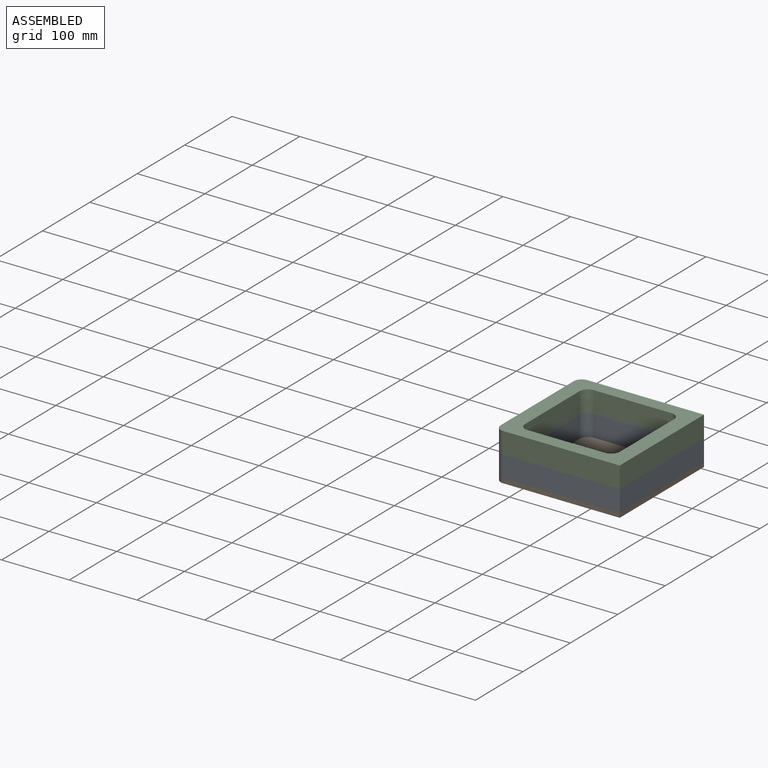
[diagram: assembled view]
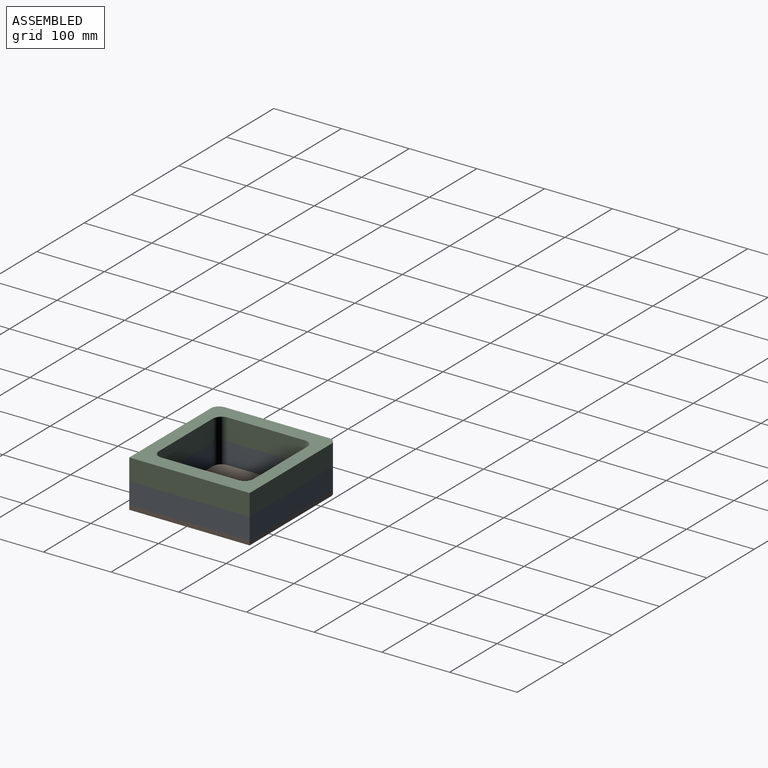
[diagram: assembled view, second angle]
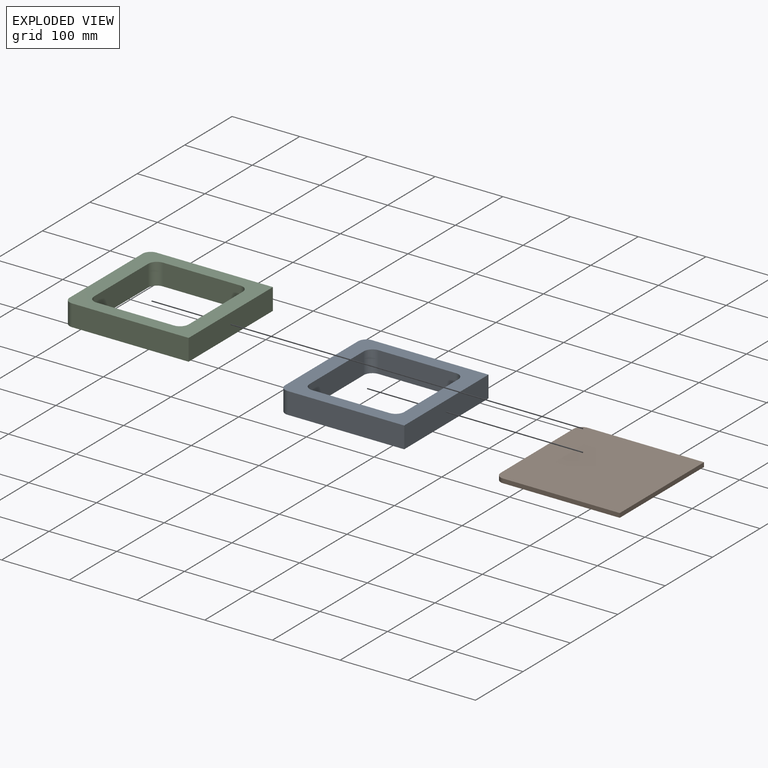
[diagram: exploded view]
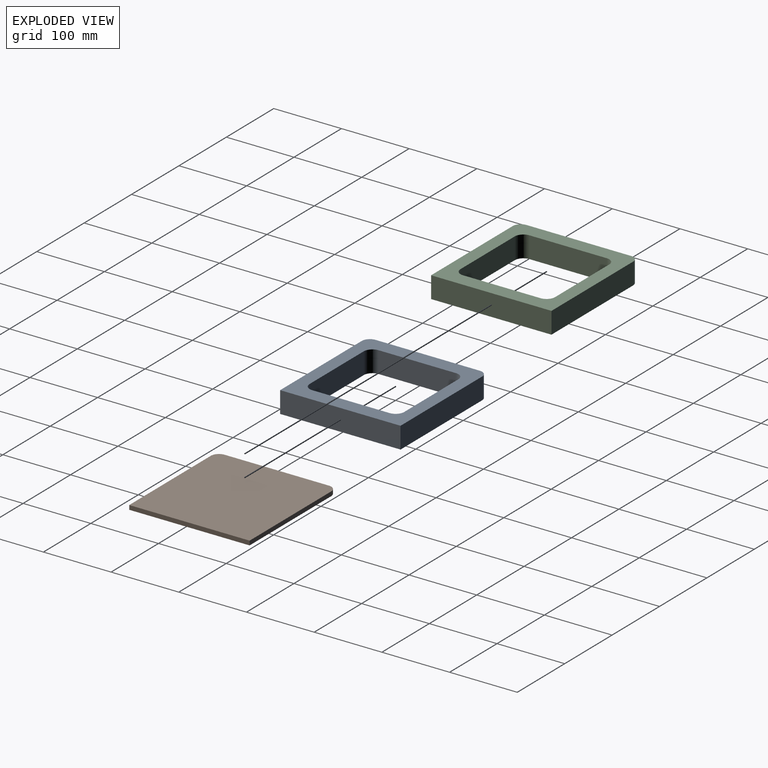
[diagram: exploded view, second angle]
ASSEMBLY  parts=3 mates=6
PART A: 16 faces, bbox 184.2x177.8x31.8 mm
  f0: plane 172.15x31.75mm, normal (0,1,0), area 5465.7mm2, adj f1,f5,f6,f7
  f1: cylinder r=12mm len=31.75mm, axis (0,0,-1), area 598.5mm2, adj f0,f2,f6,f7
  f2: plane 153.8x31.75mm, normal (-1,0,0), area 4883.1mm2, adj f1,f3,f6,f7
  f3: cylinder r=12mm len=31.75mm, axis (0,0,-1), area 598.5mm2, adj f2,f4,f6,f7
  f4: plane 172.15x31.75mm, normal (0,-1,0), area 5465.7mm2, adj f3,f5,f6,f7
  f5: plane 177.8x31.75mm, normal (1,0,0), area 5645.2mm2, adj f0,f4,f6,f7
  f6: plane 184.15x177.8mm, normal (0,0,1), area 13302.4mm2, adj f0,f1,f2,f3,f4,f5,f8,f9
  f7: plane 184.15x177.8mm, normal (0,0,-1), area 13302.4mm2, adj f0,f1,f2,f3,f4,f5,f8,f9
  f8: plane 114.3x31.75mm, normal (1,0,0), area 3629mm2, adj f6,f7,f9,f15
  f9: cylinder r=12.7mm len=31.75mm, axis (0,0,-1), area 633.4mm2, adj f6,f7,f8,f10
  f10: plane 114.3x31.75mm, normal (0,1,0), area 3629mm2, adj f6,f7,f9,f11
  f11: cylinder r=12.7mm len=31.75mm, axis (0,0,-1), area 633.4mm2, adj f6,f7,f10,f12
  f12: plane 114.3x31.75mm, normal (-1,0,0), area 3629mm2, adj f6,f7,f11,f13
  f13: cylinder r=12.7mm len=31.75mm, axis (0,0,-1), area 633.4mm2, adj f6,f7,f12,f14
  f14: plane 114.3x31.75mm, normal (0,-1,0), area 3629mm2, adj f6,f7,f13,f15
  f15: cylinder r=12.7mm len=31.75mm, axis (0,0,-1), area 633.4mm2, adj f6,f7,f8,f14
PART B: 8 faces, bbox 184.2x177.8x6.4 mm
  f0: plane 172.15x6.35mm, normal (0,1,0), area 1093.1mm2, adj f1,f5,f6,f7
  f1: cylinder r=12mm len=12mm, axis (0,0,-1), area 119.7mm2, adj f0,f2,f6,f7
  f2: plane 153.8x6.35mm, normal (-1,0,0), area 976.6mm2, adj f1,f3,f6,f7
  f3: cylinder r=12mm len=12mm, axis (0,0,-1), area 119.7mm2, adj f2,f4,f6,f7
  f4: plane 172.15x6.35mm, normal (0,-1,0), area 1093.1mm2, adj f3,f5,f6,f7
  f5: plane 177.8x6.35mm, normal (1,0,0), area 1129mm2, adj f0,f4,f6,f7
  f6: plane 184.15x177.8mm, normal (0,0,1), area 32680mm2, adj f0,f1,f2,f3,f4,f5
  f7: plane 184.15x177.8mm, normal (0,0,-1), area 32680mm2, adj f0,f1,f2,f3,f4,f5
PART C: same geometry as A
PLACE A t=(-43.66,9.6,30.57)mm
PLACE B t=(-43.66,9.6,24.22)mm
PLACE C t=(-43.66,9.6,62.32)mm
MATE planar A.f2 <-> B.f2  axis (-1,0,0) through (-135.74,-67.29,30.57)mm
MATE planar C.f2 <-> A.f2  axis (-1,0,0) through (-135.74,9.6,78.19)mm
MATE planar C.f7 <-> A.f6  axis (0,0,-1) through (-43.25,9.6,62.32)mm
MATE planar A.f7 <-> B.f6  axis (0,0,-1) through (-43.66,-60.25,30.57)mm
MATE planar A.f4 <-> B.f4  axis (0,-1,0) through (-37.66,-79.3,46.44)mm
MATE planar C.f4 <-> A.f4  axis (0,-1,0) through (-37.66,-79.3,78.19)mm
